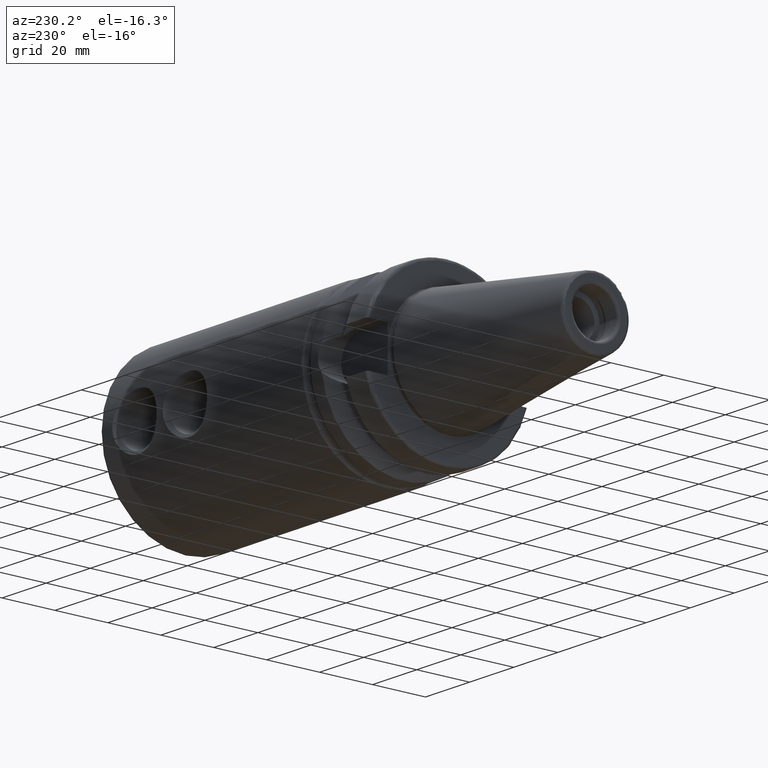
[diagram: clean part render]
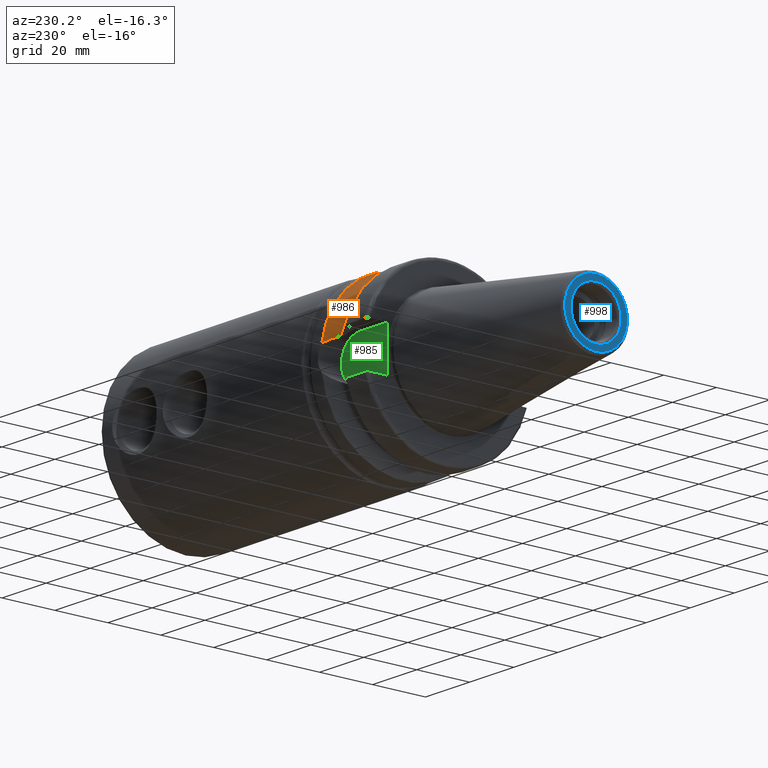
[diagram: same view with three faces highlighted in distinct colors, each labeled with its STEP entity id]
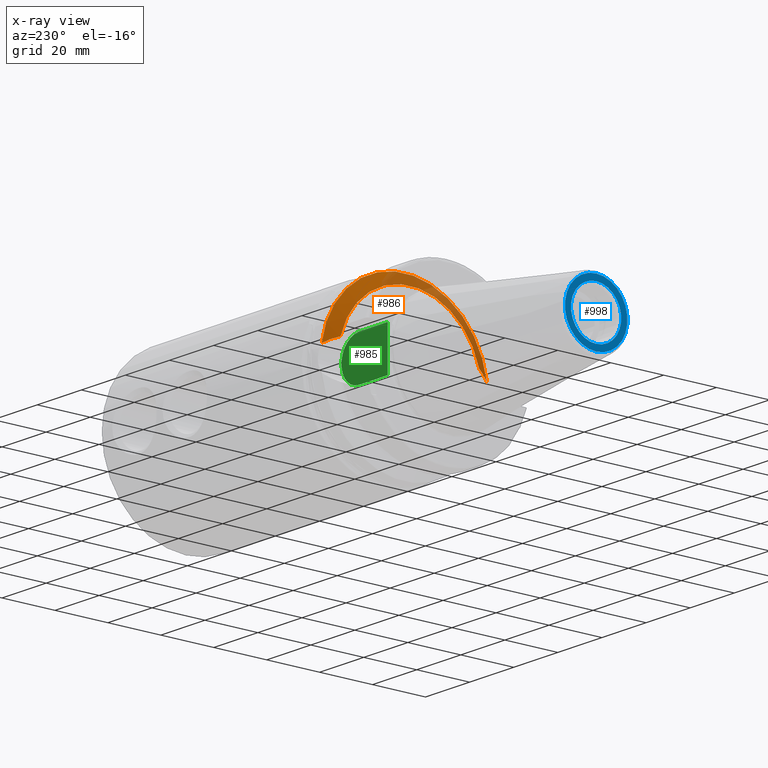
[diagram: x-ray of the same camera — body ghosted, the three highlighted faces saturated]
A machine part, auxiliary view with three faces highlighted in distinct colors.
The next image is the same camera in x-ray (body ghosted, the three faces saturated) — at least one of them is partly hidden behind the body in this view.
Their STEP definitions:

[orange] entity #986 — the highlighted conical surface has half-angle 60.125 deg.
#26=CONICAL_SURFACE('',#1112,29.2970358274569,1.0493792127616);
#44=B_SPLINE_CURVE_WITH_KNOTS('',3,(#2092,#2093,#2094,#2095,#2096,#2097),
 .UNSPECIFIED.,.F.,.F.,(4,2,4),(1.46421027899559,1.54570476603972,2.04294020568399),
 .UNSPECIFIED.);
#52=B_SPLINE_CURVE_WITH_KNOTS('',3,(#2231,#2232,#2233,#2234,#2235,#2236),
 .UNSPECIFIED.,.F.,.F.,(4,2,4),(3.12975744792547,3.62699288756974,3.70848737461386),
 .UNSPECIFIED.);
#237=FACE_OUTER_BOUND('',#302,.T.);
#302=EDGE_LOOP('',(#850,#851,#852,#853));
#350=CIRCLE('',#1065,31.5);
#371=CIRCLE('',#1113,27.0940716549138);
#424=VERTEX_POINT('',#1678);
#425=VERTEX_POINT('',#1689);
#440=VERTEX_POINT('',#2091);
#469=VERTEX_POINT('',#2229);
#530=EDGE_CURVE('',#424,#425,#350,.T.);
#557=EDGE_CURVE('',#440,#425,#44,.T.);
#598=EDGE_CURVE('',#424,#469,#52,.T.);
#609=EDGE_CURVE('',#469,#440,#371,.T.);
#850=ORIENTED_EDGE('',*,*,#557,.T.);
#851=ORIENTED_EDGE('',*,*,#530,.F.);
#852=ORIENTED_EDGE('',*,*,#598,.T.);
#853=ORIENTED_EDGE('',*,*,#609,.T.);
#986=ADVANCED_FACE('',(#237),#26,.T.);
#1065=AXIS2_PLACEMENT_3D('',#1690,#1236,#1237);
#1112=AXIS2_PLACEMENT_3D('',#2268,#1369,#1370);
#1113=AXIS2_PLACEMENT_3D('',#2269,#1371,#1372);
#1236=DIRECTION('center_axis',(1.,0.,0.));
#1237=DIRECTION('ref_axis',(0.,0.,-1.));
#1369=DIRECTION('center_axis',(1.,0.,0.));
#1370=DIRECTION('ref_axis',(0.,1.,0.));
#1371=DIRECTION('center_axis',(1.,0.,0.));
#1372=DIRECTION('ref_axis',(0.,0.,-1.));
#1678=CARTESIAN_POINT('',(21.6309636926618,31.1782420264945,4.4907932637046));
#1689=CARTESIAN_POINT('',(21.6309636926618,-31.1782420264945,4.4907932637046));
#1690=CARTESIAN_POINT('Origin',(21.6309636926618,0.,0.));
#2091=CARTESIAN_POINT('',(19.1,-26.201311395455,6.89782574439221));
#2092=CARTESIAN_POINT('Ctrl Pts',(19.1,-26.201311395455,6.89782574439221));
#2093=CARTESIAN_POINT('Ctrl Pts',(19.2210929544554,-26.4384736933511,6.82497151762395));
#2094=CARTESIAN_POINT('Ctrl Pts',(19.3406963650697,-26.6728819297428,6.74867108656039));
#2095=CARTESIAN_POINT('Ctrl Pts',(20.1784155384866,-28.3157123387484,6.18231368976925));
#2096=CARTESIAN_POINT('Ctrl Pts',(20.9728756148303,-29.8797957262939,5.46983244373115));
#2097=CARTESIAN_POINT('Ctrl Pts',(21.6309636926618,-31.1782420264945,4.4907932637046));
#2229=CARTESIAN_POINT('',(19.1,26.201311395455,6.89782574439221));
#2231=CARTESIAN_POINT('Ctrl Pts',(21.6309636926618,31.1782420264945,4.4907932637046));
#2232=CARTESIAN_POINT('Ctrl Pts',(20.9728756148303,29.8797957262939,5.46983244373114));
#2233=CARTESIAN_POINT('Ctrl Pts',(20.1784155384866,28.3157123387484,6.18231368976924));
#2234=CARTESIAN_POINT('Ctrl Pts',(19.3406963650697,26.6728819297428,6.74867108656039));
#2235=CARTESIAN_POINT('Ctrl Pts',(19.2210929544554,26.438473693351,6.82497151762395));
#2236=CARTESIAN_POINT('Ctrl Pts',(19.1,26.201311395455,6.89782574439221));
#2268=CARTESIAN_POINT('Origin',(20.3654818463309,0.,0.));
#2269=CARTESIAN_POINT('Origin',(19.1,0.,0.));

[blue] entity #998 — the highlighted planar face has unit normal (-1, 0, 0).
#180=FACE_BOUND('',#316,.T.);
#196=PLANE('',#1138);
#249=FACE_OUTER_BOUND('',#315,.T.);
#315=EDGE_LOOP('',(#900));
#316=EDGE_LOOP('',(#901));
#383=CIRCLE('',#1136,9.5);
#385=CIRCLE('',#1139,11.8227555970304);
#482=VERTEX_POINT('',#2300);
#483=VERTEX_POINT('',#2304);
#624=EDGE_CURVE('',#482,#482,#383,.T.);
#626=EDGE_CURVE('',#483,#483,#385,.T.);
#900=ORIENTED_EDGE('',*,*,#626,.F.);
#901=ORIENTED_EDGE('',*,*,#624,.T.);
#998=ADVANCED_FACE('',(#249,#180),#196,.T.);
#1136=AXIS2_PLACEMENT_3D('',#2301,#1420,#1421);
#1138=AXIS2_PLACEMENT_3D('',#2303,#1424,#1425);
#1139=AXIS2_PLACEMENT_3D('',#2305,#1426,#1427);
#1420=DIRECTION('center_axis',(1.,0.,0.));
#1421=DIRECTION('ref_axis',(0.,0.,-1.));
#1424=DIRECTION('center_axis',(-1.,0.,0.));
#1425=DIRECTION('ref_axis',(0.,0.,1.));
#1426=DIRECTION('center_axis',(1.,0.,0.));
#1427=DIRECTION('ref_axis',(0.,0.,-1.));
#2300=CARTESIAN_POINT('',(-65.4,-1.16341445918999E-15,9.5));
#2301=CARTESIAN_POINT('Origin',(-65.4,0.,0.));
#2303=CARTESIAN_POINT('Origin',(-65.4,11.8227555970304,0.));
#2304=CARTESIAN_POINT('',(-65.4,-1.44786997990048E-15,11.8227555970304));
#2305=CARTESIAN_POINT('Origin',(-65.4,0.,0.));

[green] entity #985 — the highlighted planar face has unit normal (0, 1, 0).
#91=LINE('',#2241,#141);
#96=LINE('',#2265,#146);
#97=LINE('',#2267,#147);
#141=VECTOR('',#1358,10.);
#146=VECTOR('',#1365,10.);
#147=VECTOR('',#1368,10.);
#192=PLANE('',#1111);
#236=FACE_OUTER_BOUND('',#301,.T.);
#301=EDGE_LOOP('',(#846,#847,#848,#849));
#370=CIRCLE('',#1108,8.05);
#465=VERTEX_POINT('',#2216);
#466=VERTEX_POINT('',#2218);
#471=VERTEX_POINT('',#2240);
#476=VERTEX_POINT('',#2263);
#594=EDGE_CURVE('',#466,#465,#370,.T.);
#600=EDGE_CURVE('',#471,#466,#91,.T.);
#607=EDGE_CURVE('',#465,#476,#96,.T.);
#608=EDGE_CURVE('',#471,#476,#97,.T.);
#846=ORIENTED_EDGE('',*,*,#607,.T.);
#847=ORIENTED_EDGE('',*,*,#608,.F.);
#848=ORIENTED_EDGE('',*,*,#600,.T.);
#849=ORIENTED_EDGE('',*,*,#594,.T.);
#985=ADVANCED_FACE('',(#236),#192,.T.);
#1108=AXIS2_PLACEMENT_3D('',#2219,#1351,#1352);
#1111=AXIS2_PLACEMENT_3D('',#2266,#1366,#1367);
#1351=DIRECTION('center_axis',(0.,1.,0.));
#1352=DIRECTION('ref_axis',(0.,0.,1.));
#1358=DIRECTION('',(1.,0.,8.57315076930623E-17));
#1365=DIRECTION('',(-1.,0.,-8.57315076930623E-17));
#1366=DIRECTION('center_axis',(0.,1.,0.));
#1367=DIRECTION('ref_axis',(0.,0.,1.));
#1368=DIRECTION('',(0.,0.,-1.));
#2216=CARTESIAN_POINT('',(14.95,22.6,-8.05));
#2218=CARTESIAN_POINT('',(14.95,22.6,8.05));
#2219=CARTESIAN_POINT('Origin',(14.95,22.6,0.));
#2240=CARTESIAN_POINT('',(1.99999999999999,22.6,8.05));
#2241=CARTESIAN_POINT('',(1.99999999999999,22.6,8.05));
#2263=CARTESIAN_POINT('',(1.99999999999999,22.6,-8.05));
#2265=CARTESIAN_POINT('',(14.95,22.6,-8.05));
#2266=CARTESIAN_POINT('Origin',(12.5,22.6,0.));
#2267=CARTESIAN_POINT('',(1.99999999999999,22.6,0.));